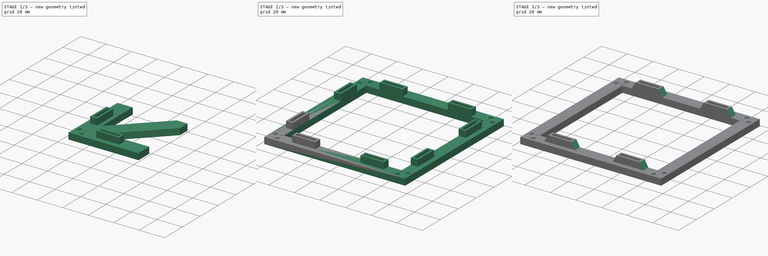
[diagram: build sequence overview — one tinted view per stage of 3, left to right]
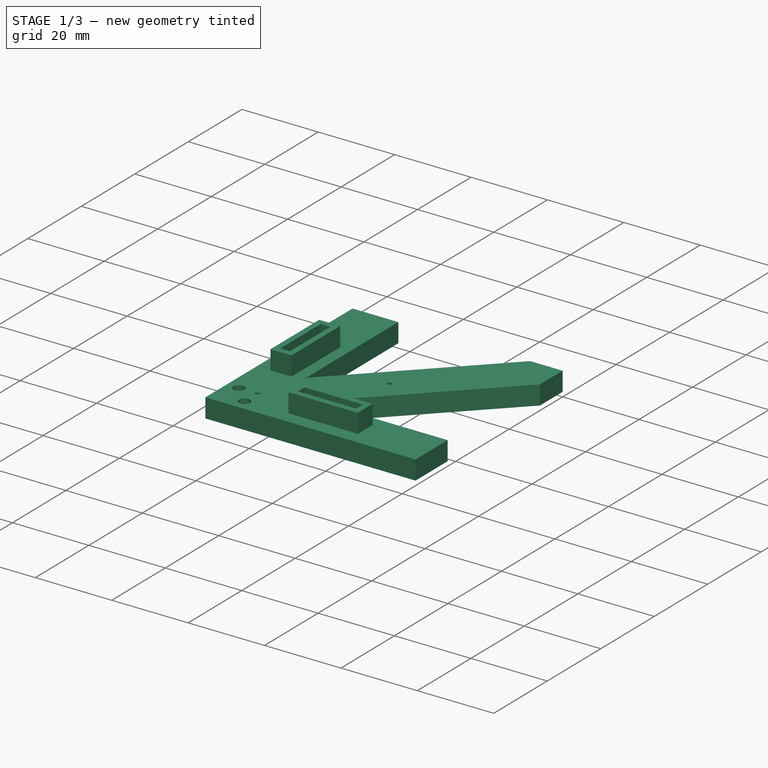
[diagram: stage 1 of 3 — iso view after this stage's code; geometry added in this stage tinted green]
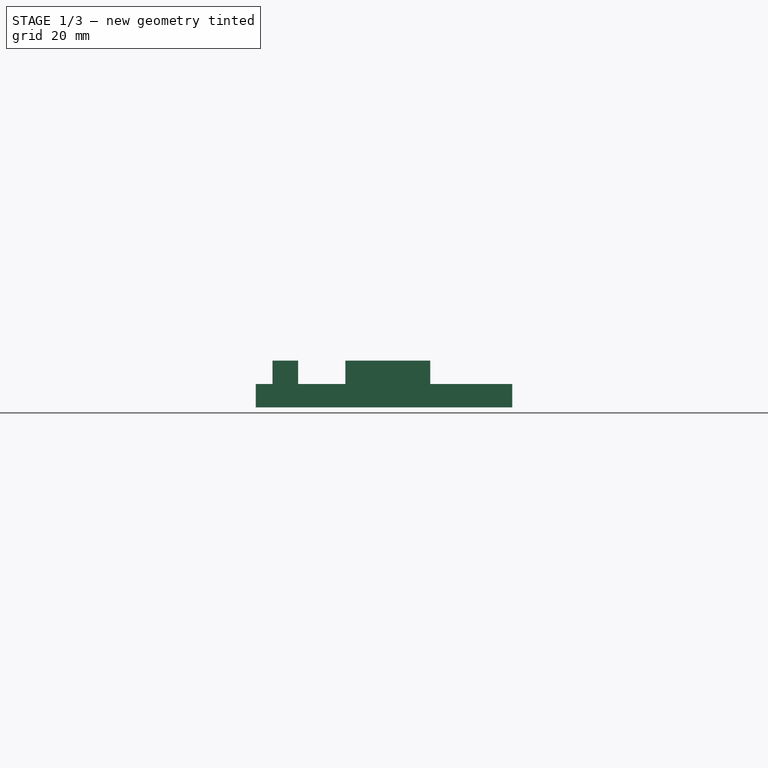
[diagram: stage 1 of 3 — front view after this stage's code; geometry added in this stage tinted green]
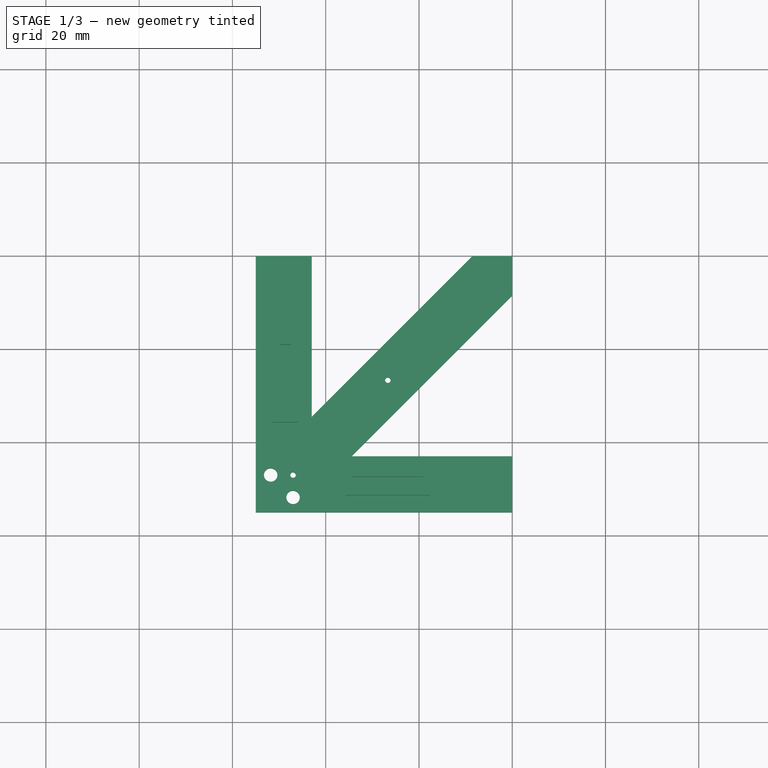
[diagram: stage 1 of 3 — top view after this stage's code; geometry added in this stage tinted green]
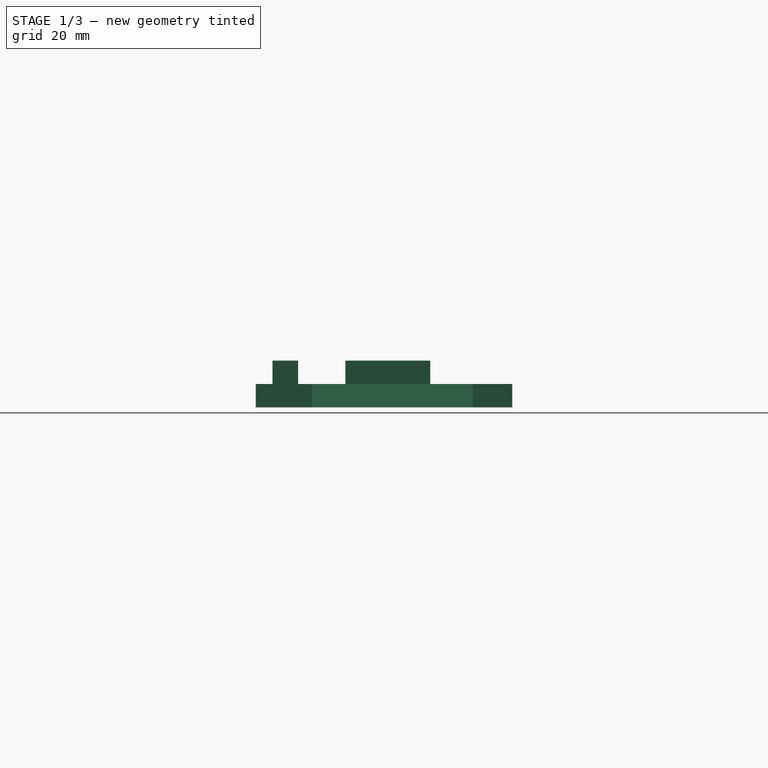
[diagram: stage 1 of 3 — right view after this stage's code; geometry added in this stage tinted green]
FCSTD DOCUMENT  (FreeCAD 0.18R15969 (Git))
Label: FFC_connector_jig_5
License: All rights reserved
LicenseURL: http://en.wikipedia.org/wiki/All_rights_reserved
objects: Sketcher::SketchObject×4, PartDesign::Pad×2, PartDesign::Pocket×2, PartDesign::PolarPattern×1, PartDesign::Draft×1, PartDesign::Body×1
note: 15 computed .brp shape members not serialized (recipe doc carries the construction recipe); baked Part::Feature solids carry a one-line shape summary decoded from their .brp

FEATURE [Sketcher::SketchObject] Sketch
  MapMode = 5
  Support = -> [XY_Plane]
  expr: Constraints[6] = 20.33016
  sketch-geometry (19):
    g0: LineSegment StartX=-55 StartY=-55 StartZ=0 EndX=0 EndY=-55 EndZ=0
    g1: LineSegment StartX=-55 StartY=0 StartZ=0 EndX=-55 EndY=-55 EndZ=0
    g2: LineSegment [constr] StartX=-55 StartY=-55 StartZ=0 EndX=0 EndY=0 EndZ=0
    g3: Circle CenterX=-47.0002 CenterY=-47.0002 CenterZ=0 NormalX=0 NormalY=0 NormalZ=1 AngleXU=0 Radius=0.6
    g4: Circle CenterX=-26.67 CenterY=-26.67 CenterZ=0 NormalX=0 NormalY=0 NormalZ=1 AngleXU=0 Radius=0.6
    g5: LineSegment StartX=-43 StartY=0 StartZ=0 EndX=-43 EndY=-34.5147 EndZ=0
    g6: LineSegment StartX=-43 StartY=-34.5147 StartZ=0 EndX=-8.48528 EndY=0 EndZ=0
    g7: LineSegment StartX=-8.48528 StartY=0 StartZ=0 EndX=0 EndY=0 EndZ=0
    g8: LineSegment StartX=0 StartY=0 StartZ=0 EndX=0 EndY=-8.48528 EndZ=0
    g9: LineSegment StartX=0 StartY=-8.48528 StartZ=0 EndX=-34.5147 EndY=-43 EndZ=0
    g10: LineSegment StartX=-34.5147 StartY=-43 StartZ=0 EndX=0 EndY=-43 EndZ=0
    g11: LineSegment StartX=0 StartY=-43 StartZ=0 EndX=0 EndY=-55 EndZ=0
    g12: LineSegment StartX=-55 StartY=0 StartZ=0 EndX=-43 EndY=0 EndZ=0
    g13: Circle CenterX=-51.8 CenterY=-47 CenterZ=0 NormalX=0 NormalY=0 NormalZ=1 AngleXU=0 Radius=1.45
    g14: Circle CenterX=-47 CenterY=-51.8 CenterZ=0 NormalX=0 NormalY=0 NormalZ=1 AngleXU=0 Radius=1.45
    g15: LineSegment [constr] StartX=-47 StartY=-51.8 StartZ=0 EndX=-47 EndY=-55 EndZ=0
    g16: LineSegment [constr] StartX=-47 StartY=-51.8 StartZ=0 EndX=-55 EndY=-51.8 EndZ=0
    g17: LineSegment [constr] StartX=-51.8 StartY=-47 StartZ=0 EndX=-51.8 EndY=-55 EndZ=0
    g18: LineSegment [constr] StartX=-51.8 StartY=-47 StartZ=0 EndX=-55 EndY=-47 EndZ=0
  constraints (55):
    c: Horizontal(g0)
    c: Vertical(g1)
    c: Equal(g1,g0)
    c: Coincident(g2,g0)
    c: PointOnObject(g3,g2)
    c: PointOnObject(g4,g2)
    c: DistanceX(g3,g4) = 20.3302
    c: Radius(g3) = 0.6
    c: Equal(g3,g4)
    c: Coincident(g0,g1)
    c: DistanceX(g4,g-1) = 26.67
    c: PointOnObject(g1,g-1)
    c: PointOnObject(g0,g-2)
    c: Coincident(g2,g-1)
    c: PointOnObject(g5,g-1)
    c: Vertical(g5)
    c: Coincident(g6,g5)
    c: PointOnObject(g6,g-1)
    c: Coincident(g7,g6)
    c: Coincident(g7,g-1)
    c: Coincident(g8,g7)
    c: PointOnObject(g8,g-2)
    c: Coincident(g9,g8)
    c: Coincident(g10,g9)
    c: PointOnObject(g10,g-2)
    c: Horizontal(g10)
    c: Coincident(g11,g10)
    c: Coincident(g11,g0)
    c: Coincident(g12,g1)
    c: Coincident(g12,g5)
    c: Equal(g12,g11)
    c: Equal(g10,g5)
    c: Parallel(g9,g2)
    c: Parallel(g2,g6)
    c: DistanceX(g12,g12) = 12
    c: Distance(g6,g8) = 12
    c: DistanceX(g0,g0) = 55
    c: Coincident(g15,g14)
    c: PointOnObject(g15,g0)
    c: Vertical(g15)
    c: Coincident(g16,g14)
    c: PointOnObject(g16,g1)
    c: Horizontal(g16)
    c: Coincident(g17,g13)
    c: PointOnObject(g17,g0)
    c: Coincident(g18,g13)
    c: PointOnObject(g18,g1)
    c: Horizontal(g18)
    c: Vertical(g17)
    c: Equal(g18,g15)
    c: Equal(g16,g17)
    c: DistanceX(g13,g7) = 51.8
    c: DistanceY(g13,g7) = 47
    c: Radius(g13) = 1.45
    c: Equal(g13,g14)
FEATURE [PartDesign::Pad] Pad
  Length = 5
  Length2 = 100
  Profile = -> Sketch
  Refine = true
  Type = 0
FEATURE [Sketcher::SketchObject] Sketch001
  ExternalGeometry = -> [Pad]
  MapMode = 5
  Placement = pos=(0,0,5) rot=(0,0,1;0rad)
  Support = -> [Pad]
  expr: Constraints[41] = 2.3 + 0.2
  expr: Constraints[40] = 15 + 0.2
  sketch-geometry (28):
    g0: LineSegment StartX=-35.77 StartY=-51.42 StartZ=0 EndX=-17.57 EndY=-51.42 EndZ=0
    g1: LineSegment StartX=-17.57 StartY=-51.42 StartZ=0 EndX=-17.57 EndY=-45.92 EndZ=0
    g2: LineSegment StartX=-17.57 StartY=-45.92 StartZ=0 EndX=-35.77 EndY=-45.92 EndZ=0
    g3: LineSegment StartX=-35.77 StartY=-45.92 StartZ=0 EndX=-35.77 EndY=-51.42 EndZ=0
    g4: LineSegment StartX=-34.27 StartY=-49.92 StartZ=0 EndX=-19.07 EndY=-49.92 EndZ=0
    g5: LineSegment StartX=-19.07 StartY=-49.92 StartZ=0 EndX=-19.07 EndY=-47.42 EndZ=0
    g6: LineSegment StartX=-19.07 StartY=-47.42 StartZ=0 EndX=-34.27 EndY=-47.42 EndZ=0
    g7: LineSegment StartX=-34.27 StartY=-47.42 StartZ=0 EndX=-34.27 EndY=-49.92 EndZ=0
    g8: LineSegment StartX=-51.42 StartY=-35.77 StartZ=0 EndX=-45.92 EndY=-35.77 EndZ=0
    g9: LineSegment StartX=-45.92 StartY=-35.77 StartZ=0 EndX=-45.92 EndY=-17.57 EndZ=0
    g10: LineSegment StartX=-45.92 StartY=-17.57 StartZ=0 EndX=-51.42 EndY=-17.57 EndZ=0
    g11: LineSegment StartX=-51.42 StartY=-17.57 StartZ=0 EndX=-51.42 EndY=-35.77 EndZ=0
    g12: LineSegment StartX=-49.92 StartY=-34.27 StartZ=0 EndX=-47.42 EndY=-34.27 EndZ=0
    g13: LineSegment StartX=-47.42 StartY=-34.27 StartZ=0 EndX=-47.42 EndY=-19.07 EndZ=0
    g14: LineSegment StartX=-47.42 StartY=-19.07 StartZ=0 EndX=-49.92 EndY=-19.07 EndZ=0
    g15: LineSegment StartX=-49.92 StartY=-19.07 StartZ=0 EndX=-49.92 EndY=-34.27 EndZ=0
    g16: LineSegment [constr] StartX=-45.92 StartY=-17.57 StartZ=0 EndX=-26.67 EndY=-26.67 EndZ=0
    g17: LineSegment [constr] StartX=-35.77 StartY=-45.92 StartZ=0 EndX=-26.67 EndY=-26.67 EndZ=0
    g18: LineSegment [constr] StartX=-26.67 StartY=-26.67 StartZ=0 EndX=-17.57 EndY=-45.92 EndZ=0
    g19: LineSegment [constr] StartX=-34.27 StartY=-47.42 StartZ=0 EndX=-34.27 EndY=-45.92 EndZ=0
    g20: LineSegment [constr] StartX=-47.42 StartY=-19.07 StartZ=0 EndX=-47.42 EndY=-17.57 EndZ=0
    g21: LineSegment [constr] StartX=-47.42 StartY=-19.07 StartZ=0 EndX=-45.92 EndY=-19.07 EndZ=0
    g22: LineSegment [constr] StartX=-49.92 StartY=-34.27 StartZ=0 EndX=-51.42 EndY=-34.27 EndZ=0
    g23: LineSegment [constr] StartX=-49.92 StartY=-34.27 StartZ=0 EndX=-49.92 EndY=-35.77 EndZ=0
    g24: LineSegment [constr] StartX=-45.92 StartY=-35.77 StartZ=0 EndX=-26.67 EndY=-26.67 EndZ=0
    g25: LineSegment [constr] StartX=-34.27 StartY=-47.42 StartZ=0 EndX=-35.77 EndY=-47.42 EndZ=0
    g26: LineSegment [constr] StartX=-19.07 StartY=-49.92 StartZ=0 EndX=-17.57 EndY=-49.92 EndZ=0
    g27: LineSegment [constr] StartX=-19.07 StartY=-49.92 StartZ=0 EndX=-19.07 EndY=-51.42 EndZ=0
  constraints (80):
    c: Coincident(g0,g1)
    c: Coincident(g1,g2)
    c: Coincident(g2,g3)
    c: Coincident(g3,g0)
    c: Horizontal(g0)
    c: Horizontal(g2)
    c: Vertical(g1)
    c: Vertical(g3)
    c: Coincident(g4,g5)
    c: Coincident(g5,g6)
    c: Coincident(g6,g7)
    c: Coincident(g7,g4)
    c: Horizontal(g4)
    c: Horizontal(g6)
    c: Vertical(g5)
    c: Vertical(g7)
    c: Coincident(g8,g9)
    c: Coincident(g9,g10)
    c: Coincident(g10,g11)
    c: Coincident(g11,g8)
    c: Horizontal(g8)
    c: Horizontal(g10)
    c: Vertical(g9)
    c: Vertical(g11)
    c: Coincident(g12,g13)
    c: Coincident(g13,g14)
    c: Coincident(g14,g15)
    c: Coincident(g15,g12)
    c: Horizontal(g12)
    c: Horizontal(g14)
    c: Vertical(g13)
    c: Vertical(g15)
    c: Coincident(g16,g9)
    c: Coincident(g17,g2)
    c: Coincident(g17,g16)
    c: Coincident(g18,g16)
    c: Coincident(g18,g1)
    c: Equal(g18,g17)
    c: Equal(g6,g13)
    c: Equal(g12,g7)
    c: DistanceX(g4,g4) = 15.2
    c: DistanceY(g5,g5) = 2.5
    c: Coincident(g19,g6)
    c: PointOnObject(g19,g2)
    c: Vertical(g19)
    c: Coincident(g20,g13)
    c: PointOnObject(g20,g10)
    c: Vertical(g20)
    c: Coincident(g21,g13)
    c: PointOnObject(g21,g9)
    c: Horizontal(g21)
    c: Coincident(g22,g12)
    c: PointOnObject(g22,g11)
    c: Horizontal(g22)
    c: Coincident(g23,g12)
    c: PointOnObject(g23,g8)
    c: Vertical(g23)
    c: Equal(g23,g22)
    c: Equal(g22,g20)
    c: Equal(g20,g21)
    c: Coincident(g24,g8)
    c: Coincident(g24,g16)
    c: Equal(g24,g16)
    c: Equal(g24,g17)
    c: Coincident(g16,g-5)
    c: Coincident(g25,g6)
    c: PointOnObject(g25,g3)
    c: Horizontal(g25)
    c: Coincident(g26,g4)
    c: PointOnObject(g26,g1)
    c: Horizontal(g26)
    c: Coincident(g27,g4)
    c: PointOnObject(g27,g0)
    c: Vertical(g27)
    c: Equal(g26,g27)
    c: Equal(g27,g25)
    c: Equal(g25,g19)
    c: Equal(g19,g22)
    c: DistanceX(g26,g26) = 1.5
    c: DistanceY(g5,g16) = 20.75
FEATURE [PartDesign::Pad] Pad001
  BaseFeature = -> Pad
  Length = 5
  Length2 = 100
  Profile = -> Sketch001
  Refine = true
  Type = 0
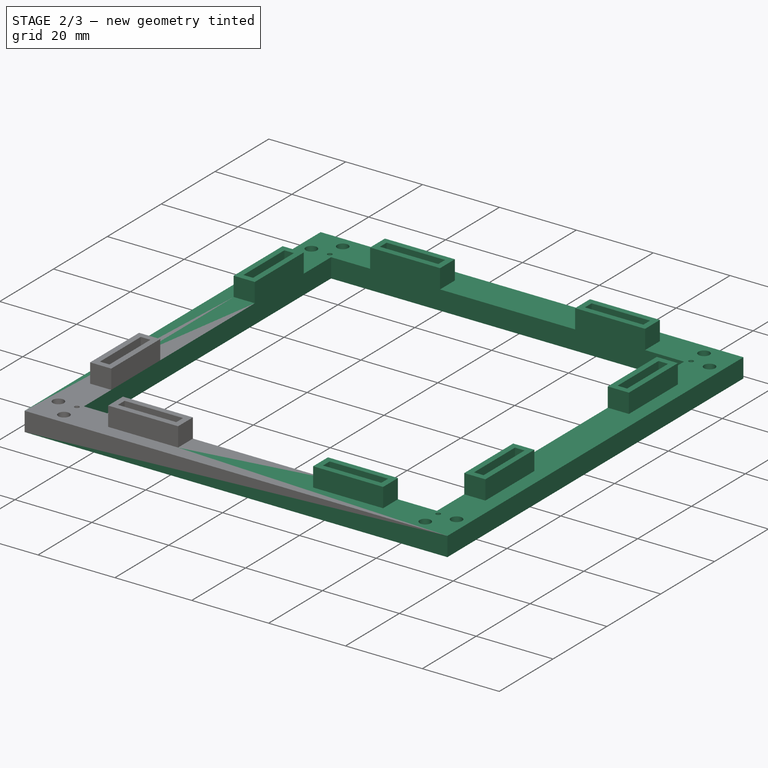
[diagram: stage 2 of 3 — iso view after this stage's code; geometry added in this stage tinted green]
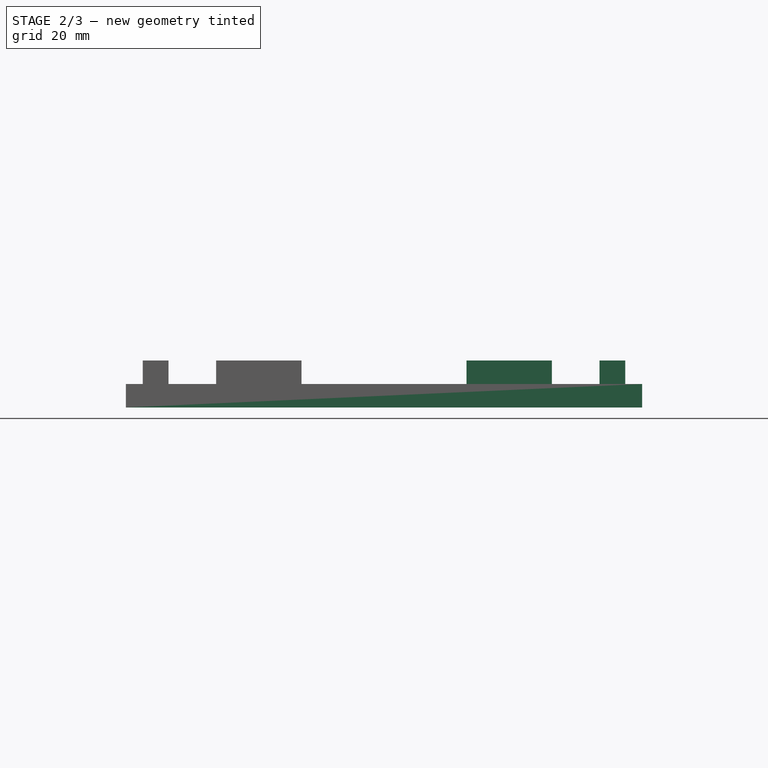
[diagram: stage 2 of 3 — front view after this stage's code; geometry added in this stage tinted green]
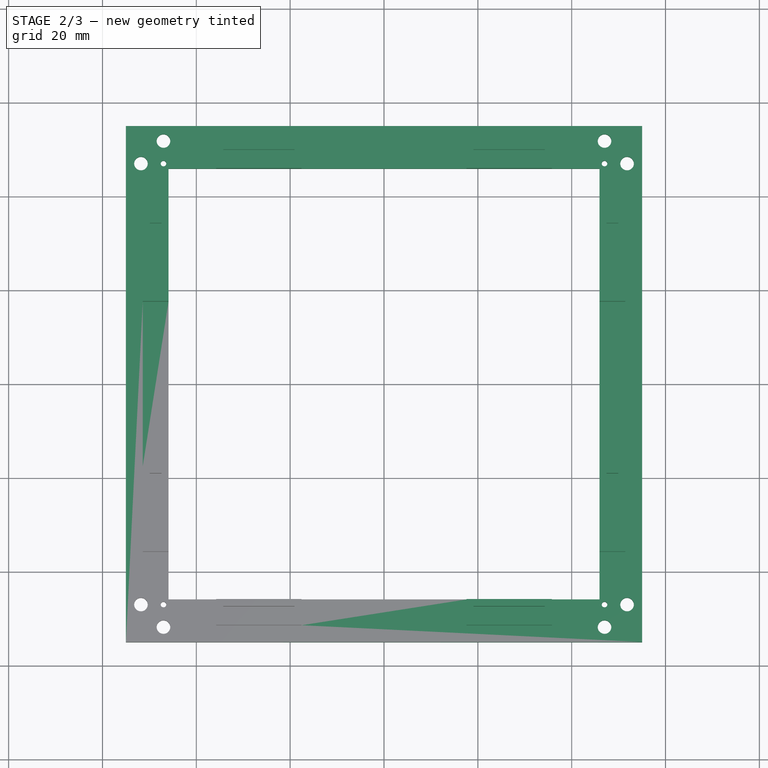
[diagram: stage 2 of 3 — top view after this stage's code; geometry added in this stage tinted green]
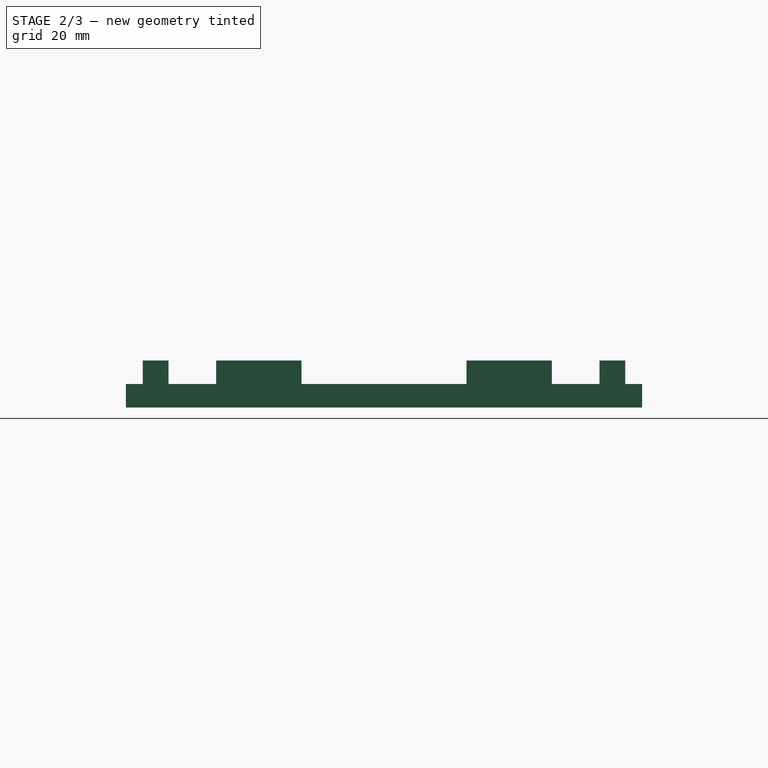
[diagram: stage 2 of 3 — right view after this stage's code; geometry added in this stage tinted green]
FEATURE [PartDesign::PolarPattern] PolarPattern
  Angle = 360
  Axis = -> Sketch [N_Axis]
  BaseFeature = -> Pad001
  Occurrences = 4
  Originals = -> [Pad,Pad001]
  Refine = true
FEATURE [Sketcher::SketchObject] Sketch002
  ExternalGeometry = -> [PolarPattern]
  MapMode = 5
  Placement = pos=(0,0,5) rot=(0,0,1;0rad)
  Support = -> [PolarPattern]
  sketch-geometry (4):
    g0: LineSegment StartX=-45.92 StartY=45.92 StartZ=0 EndX=45.92 EndY=45.92 EndZ=0
    g1: LineSegment StartX=45.92 StartY=45.92 StartZ=0 EndX=45.92 EndY=-45.92 EndZ=0
    g2: LineSegment StartX=45.92 StartY=-45.92 StartZ=0 EndX=-45.92 EndY=-45.92 EndZ=0
    g3: LineSegment StartX=-45.92 StartY=-45.92 StartZ=0 EndX=-45.92 EndY=45.92 EndZ=0
  constraints (12):
    c: Coincident(g0,g1)
    c: Coincident(g1,g2)
    c: Coincident(g2,g3)
    c: Coincident(g3,g0)
    c: Horizontal(g0)
    c: Horizontal(g2)
    c: Vertical(g1)
    c: Vertical(g3)
    c: PointOnObject(g-3,g0)
    c: PointOnObject(g-4,g3)
    c: PointOnObject(g-5,g2)
    c: PointOnObject(g-6,g1)
FEATURE [PartDesign::Pocket] Pocket
  BaseFeature = -> PolarPattern
  Length = 5
  Length2 = 100
  Profile = -> Sketch002
  Refine = true
  Type = 0
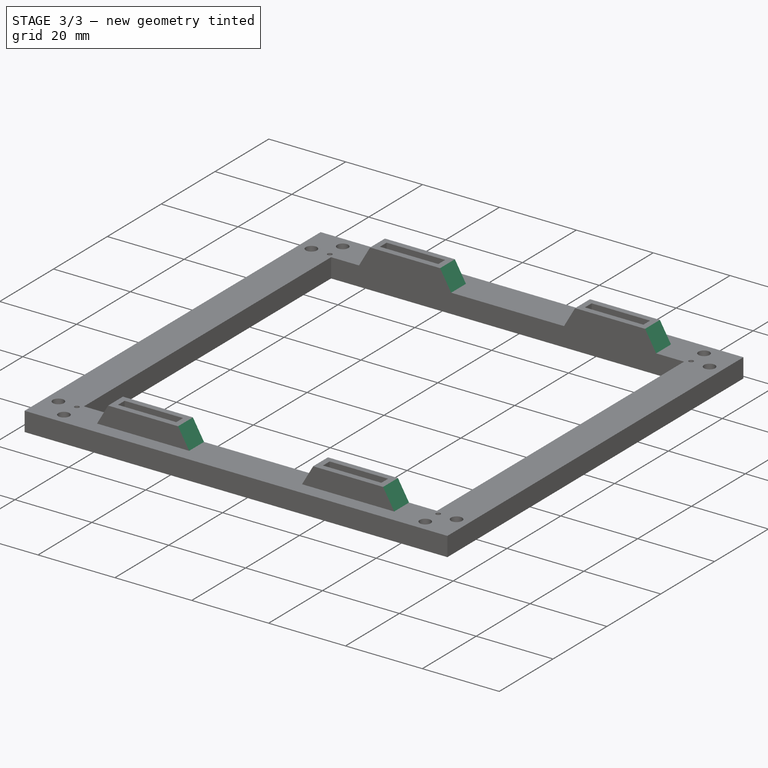
[diagram: stage 3 of 3 — iso view after this stage's code; geometry added in this stage tinted green]
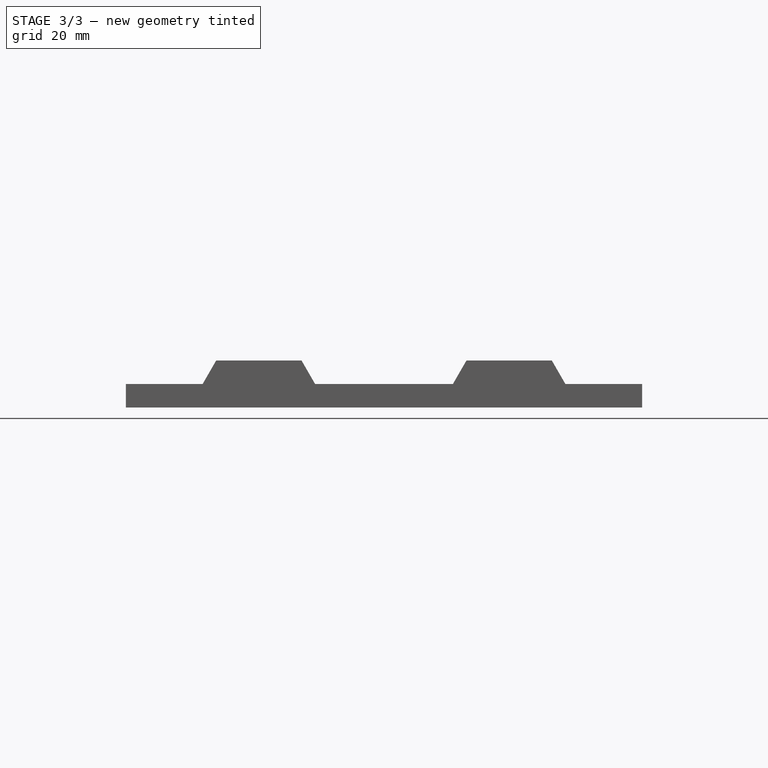
[diagram: stage 3 of 3 — front view after this stage's code; geometry added in this stage tinted green]
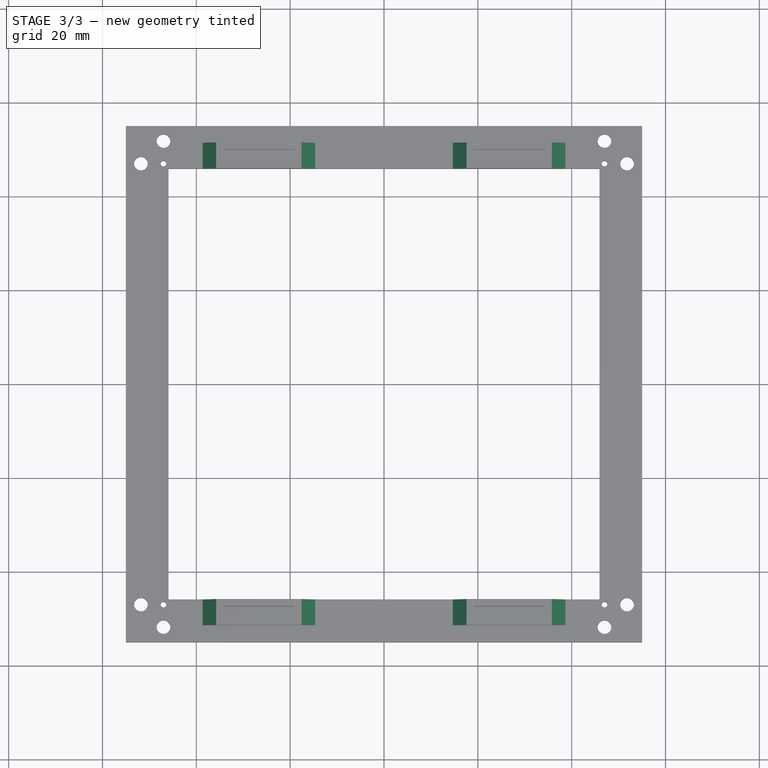
[diagram: stage 3 of 3 — top view after this stage's code; geometry added in this stage tinted green]
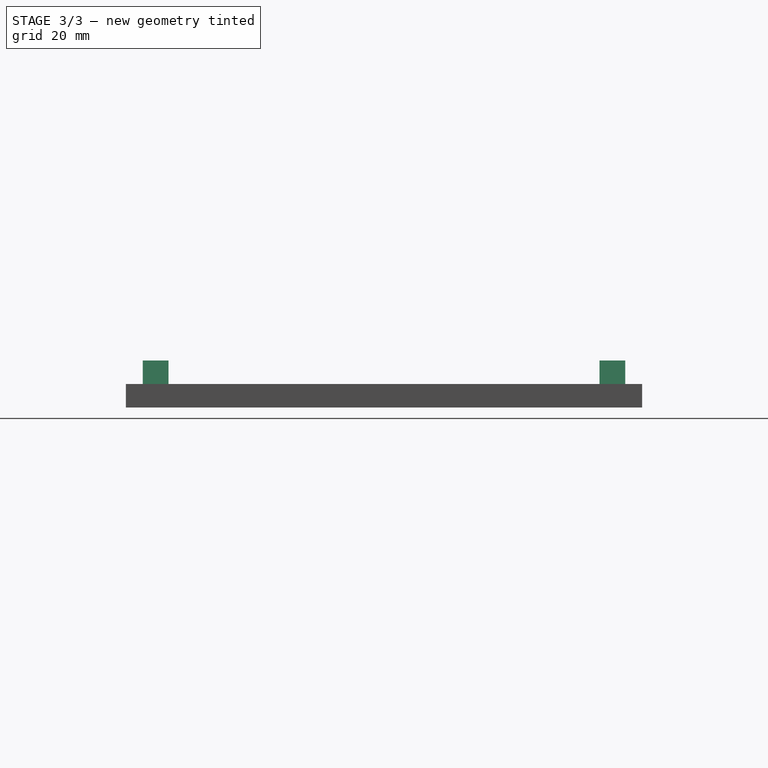
[diagram: stage 3 of 3 — right view after this stage's code; geometry added in this stage tinted green]
FEATURE [PartDesign::Draft] Draft
  Angle = 30
  Base = -> Pocket [Face22,Face41,Face25,Face28,Face31,Face32,Face35,Face38,Face26,Face23,Face29,Face34,Face37,Face40,Face19,Face20]
  BaseFeature = -> Pocket
  NeutralPlane = -> Pocket [Face44]
FEATURE [Sketcher::SketchObject] Sketch003
  MapMode = 5
  Placement = pos=(0,0,5) rot=(0,0,1;0rad)
  Support = -> [Draft]
  sketch-geometry (7):
    g0: LineSegment StartX=-60 StartY=40 StartZ=0 EndX=60 EndY=40 EndZ=0
    g1: LineSegment StartX=60 StartY=40 StartZ=0 EndX=60 EndY=-40 EndZ=0
    g2: LineSegment StartX=60 StartY=-40 StartZ=0 EndX=-60 EndY=-40 EndZ=0
    g3: LineSegment StartX=-60 StartY=-40 StartZ=0 EndX=-60 EndY=40 EndZ=0
    g4: LineSegment [constr] StartX=-60 StartY=40 StartZ=0 EndX=0 EndY=0 EndZ=0
    g5: LineSegment [constr] StartX=0 StartY=0 StartZ=0 EndX=60 EndY=40 EndZ=0
    g6: LineSegment [constr] StartX=0 StartY=0 StartZ=0 EndX=60 EndY=-40 EndZ=0
  constraints (18):
    c: Coincident(g0,g1)
    c: Coincident(g1,g2)
    c: Coincident(g2,g3)
    c: Coincident(g3,g0)
    c: Horizontal(g0)
    c: Horizontal(g2)
    c: Vertical(g1)
    c: Vertical(g3)
    c: Coincident(g4,g0)
    c: Coincident(g4,g-1)
    c: Coincident(g5,g-1)
    c: Coincident(g5,g0)
    c: Coincident(g6,g-1)
    c: Coincident(g6,g1)
    c: Equal(g6,g5)
    c: Equal(g5,g4)
    c: DistanceY(g3,g3) = 80
    c: DistanceX(g0,g0) = 120
FEATURE [PartDesign::Pocket] Pocket001
  BaseFeature = -> Draft
  Length = 5
  Length2 = 100
  Profile = -> Sketch003
  Refine = true
  Reversed = true
  Type = 0
FEATURE [PartDesign::Body] Body
  Group = -> [Sketch,Pad,Sketch001,Pad001,PolarPattern,Sketch002,Pocket,Draft,Sketch003,Pocket001]
  Origin = -> Origin
  Tip = -> Pocket001
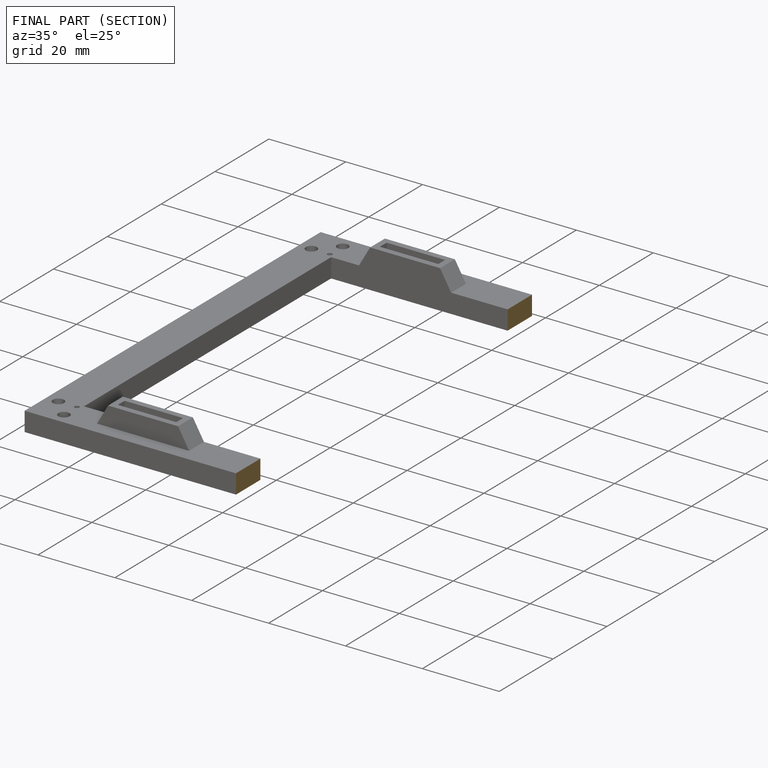
[diagram: finished part — half-section view (interior)]
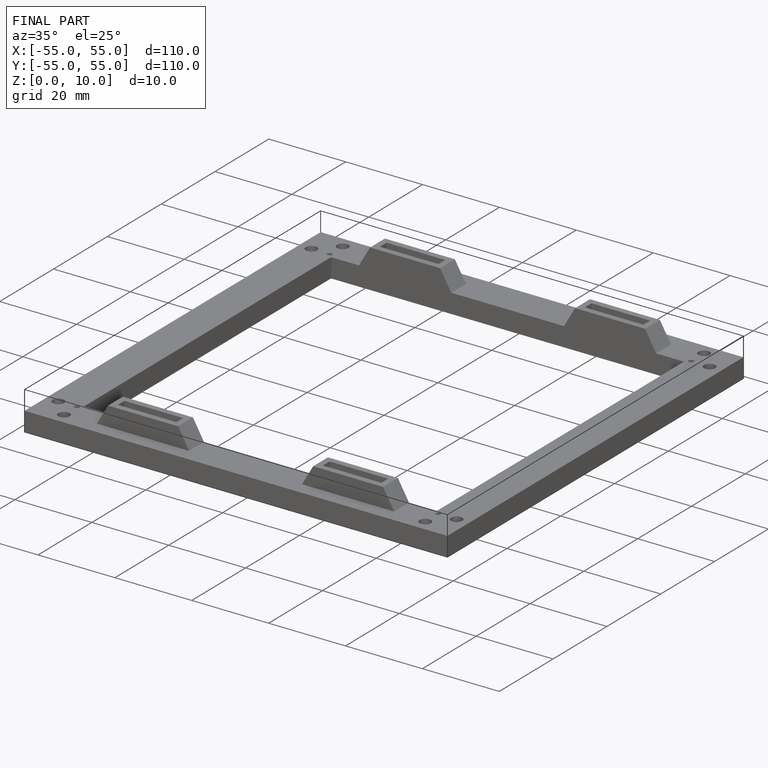
[diagram: finished part — iso view with bounding-box wireframe]
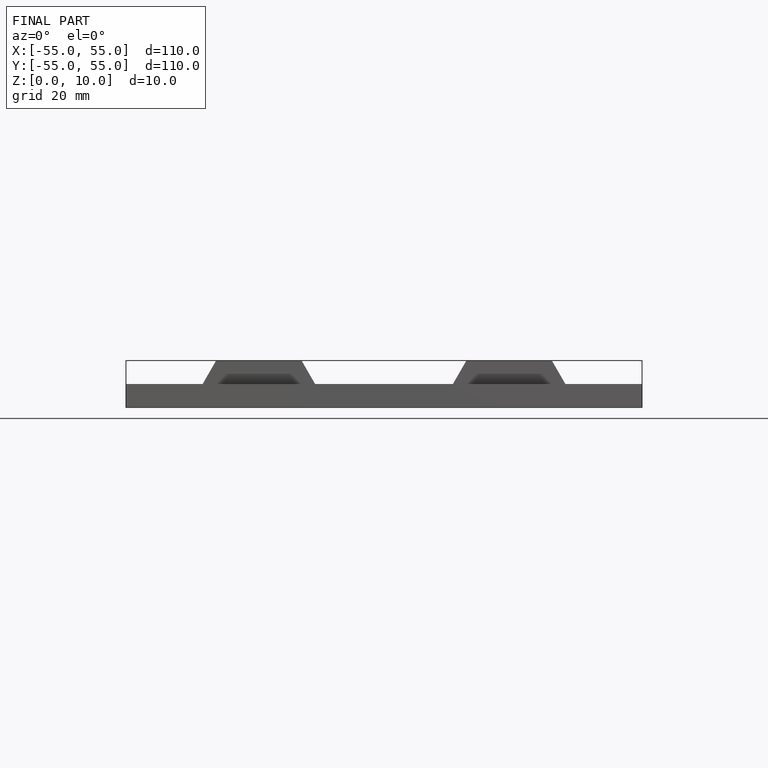
[diagram: finished part — front view with bounding-box wireframe]
